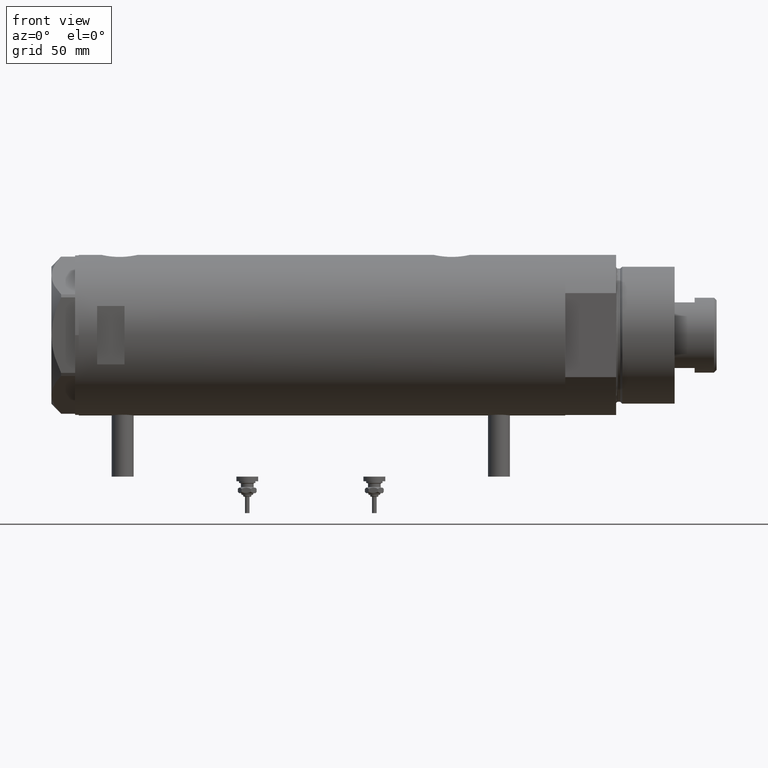
[diagram: clean part render]
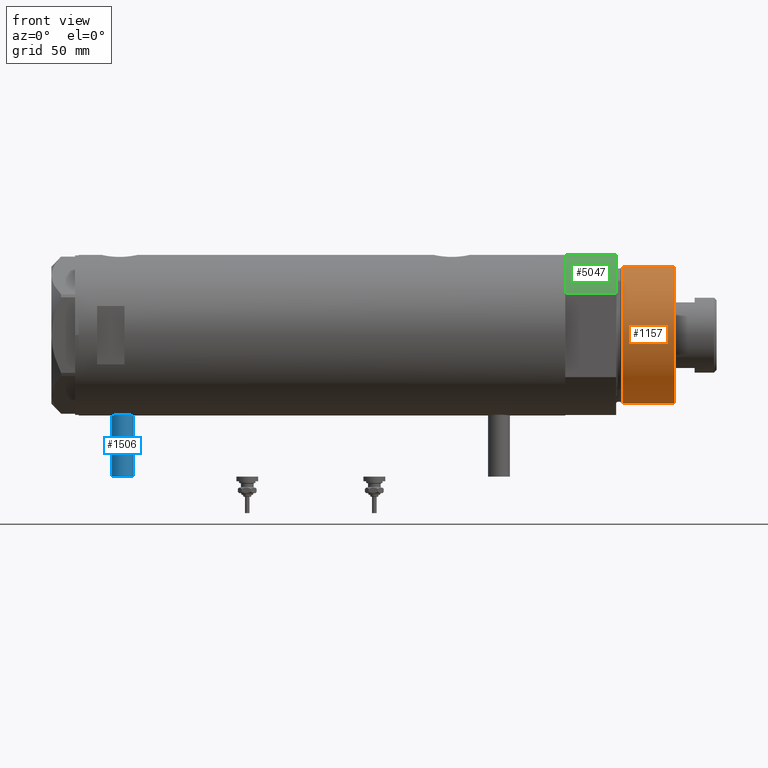
[diagram: same view with three faces highlighted in distinct colors, each labeled with its STEP entity id]
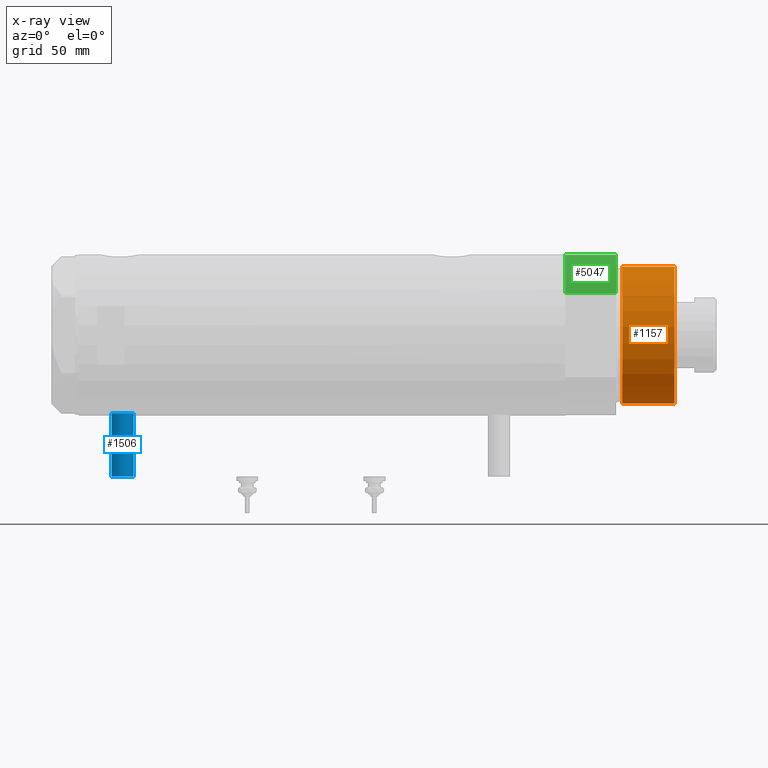
[diagram: x-ray of the same camera — body ghosted, the three highlighted faces saturated]
A machine part, front view with three faces highlighted in distinct colors.
The next image is the same camera in x-ray (body ghosted, the three faces saturated) — at least one of them is partly hidden behind the body in this view.
Their STEP definitions:

[orange] entity #1157 — the highlighted cylindrical surface (partial cylindrical patch) has radius 37.5 mm, axis along (-1, -0, 0).
#3 = CARTESIAN_POINT ( 'NONE',  ( 37.50000000000000711, 4.592425496802575156E-15, 59.89999999999999147 ) ) ;
#8 = CARTESIAN_POINT ( 'NONE',  ( -37.50000000000000711, 0.000000000000000000, 59.89999999999999147 ) ) ;
#376 = DIRECTION ( 'NONE',  ( -0.000000000000000000, -0.000000000000000000, -1.000000000000000000 ) ) ;
#468 = CIRCLE ( 'NONE', #2876, 37.50000000000000711 ) ;
#548 = CARTESIAN_POINT ( 'NONE',  ( -37.50000000000000711, 0.000000000000000000, 59.89999999999999147 ) ) ;
#582 = DIRECTION ( 'NONE',  ( -0.000000000000000000, -0.000000000000000000, -1.000000000000000000 ) ) ;
#827 = DIRECTION ( 'NONE',  ( 1.000000000000000000, 0.000000000000000000, 0.000000000000000000 ) ) ;
#871 = CARTESIAN_POINT ( 'NONE',  ( 37.50000000000000711, 4.592425496802575156E-15, 59.89999999999999147 ) ) ;
#1086 = ORIENTED_EDGE ( 'NONE', *, *, #1109, .T. ) ;
#1109 = EDGE_CURVE ( 'NONE', #2099, #2554, #5985, .T. ) ;
#1157 = ADVANCED_FACE ( 'NONE', ( #5787 ), #2551, .T. ) ;
#2099 = VERTEX_POINT ( 'NONE', #8 ) ;
#2147 = EDGE_LOOP ( 'NONE', ( #4466, #5566, #1086, #2421 ) ) ;
#2312 = VECTOR ( 'NONE', #376, 1000.000000000000000 ) ;
#2415 = DIRECTION ( 'NONE',  ( -0.000000000000000000, -0.000000000000000000, -1.000000000000000000 ) ) ;
#2421 = ORIENTED_EDGE ( 'NONE', *, *, #3498, .T. ) ;
#2464 = CARTESIAN_POINT ( 'NONE',  ( 0.000000000000000000, 0.000000000000000000, 59.89999999999999147 ) ) ;
#2551 = CYLINDRICAL_SURFACE ( 'NONE', #2856, 37.50000000000000711 ) ;
#2554 = VERTEX_POINT ( 'NONE', #4617 ) ;
#2704 = DIRECTION ( 'NONE',  ( -0.000000000000000000, -0.000000000000000000, 1.000000000000000000 ) ) ;
#2792 = AXIS2_PLACEMENT_3D ( 'NONE', #5553, #4146, #4541 ) ;
#2856 = AXIS2_PLACEMENT_3D ( 'NONE', #2464, #582, #5262 ) ;
#2876 = AXIS2_PLACEMENT_3D ( 'NONE', #3091, #2704, #827 ) ;
#3091 = CARTESIAN_POINT ( 'NONE',  ( 0.000000000000000000, 0.000000000000000000, 31.27384048104054415 ) ) ;
#3166 = CIRCLE ( 'NONE', #2792, 37.50000000000000711 ) ;
#3498 = EDGE_CURVE ( 'NONE', #2554, #5234, #468, .T. ) ;
#3631 = CARTESIAN_POINT ( 'NONE',  ( 37.50000000000000711, 4.592425496802575156E-15, 31.27384048104054415 ) ) ;
#3757 = VERTEX_POINT ( 'NONE', #3 ) ;
#3956 = EDGE_CURVE ( 'NONE', #3757, #5234, #5986, .T. ) ;
#4146 = DIRECTION ( 'NONE',  ( 0.000000000000000000, 0.000000000000000000, 1.000000000000000000 ) ) ;
#4466 = ORIENTED_EDGE ( 'NONE', *, *, #3956, .F. ) ;
#4541 = DIRECTION ( 'NONE',  ( 1.000000000000000000, 0.000000000000000000, 0.000000000000000000 ) ) ;
#4617 = CARTESIAN_POINT ( 'NONE',  ( -37.50000000000000711, 0.000000000000000000, 31.27384048104054415 ) ) ;
#5215 = EDGE_CURVE ( 'NONE', #2099, #3757, #3166, .T. ) ;
#5234 = VERTEX_POINT ( 'NONE', #3631 ) ;
#5262 = DIRECTION ( 'NONE',  ( -1.000000000000000000, 0.000000000000000000, 0.000000000000000000 ) ) ;
#5553 = CARTESIAN_POINT ( 'NONE',  ( 0.000000000000000000, 0.000000000000000000, 59.89999999999999147 ) ) ;
#5566 = ORIENTED_EDGE ( 'NONE', *, *, #5215, .F. ) ;
#5573 = VECTOR ( 'NONE', #2415, 1000.000000000000000 ) ;
#5787 = FACE_OUTER_BOUND ( 'NONE', #2147, .T. ) ;
#5985 = LINE ( 'NONE', #548, #5573 ) ;
#5986 = LINE ( 'NONE', #871, #2312 ) ;

[blue] entity #1506 — the highlighted cylindrical surface (edge-blend (fillet) strip) has radius 6 mm, axis along (0, 0, 1).
#22 = CARTESIAN_POINT ( 'NONE',  ( -77.50000000000000000, 0.000000000000000000, 103.2000000000000028 ) ) ;
#127 = ORIENTED_EDGE ( 'NONE', *, *, #5369, .F. ) ;
#454 = CARTESIAN_POINT ( 'NONE',  ( -77.50000000000000000, 0.000000000000000000, 109.1999999999999886 ) ) ;
#489 = CYLINDRICAL_SURFACE ( 'NONE', #1915, 5.999999999999991118 ) ;
#923 = CIRCLE ( 'NONE', #1117, 5.999999999999991118 ) ;
#936 = EDGE_CURVE ( 'NONE', #2360, #2653, #923, .T. ) ;
#985 = VERTEX_POINT ( 'NONE', #2242 ) ;
#1093 = CARTESIAN_POINT ( 'NONE',  ( -77.50000000000000000, 0.000000000000000000, 103.2000000000000028 ) ) ;
#1117 = AXIS2_PLACEMENT_3D ( 'NONE', #3568, #2738, #4901 ) ;
#1322 = CARTESIAN_POINT ( 'NONE',  ( -42.79999999999999716, 0.000000000000000000, 103.2000000000000028 ) ) ;
#1506 = ADVANCED_FACE ( 'NONE', ( #5054 ), #489, .T. ) ;
#1750 = ORIENTED_EDGE ( 'NONE', *, *, #936, .T. ) ;
#1915 = AXIS2_PLACEMENT_3D ( 'NONE', #454, #4226, #3652 ) ;
#2242 = CARTESIAN_POINT ( 'NONE',  ( -77.50000000000000000, 7.347880794884101001E-16, 115.1999999999999886 ) ) ;
#2258 = CARTESIAN_POINT ( 'NONE',  ( -42.79999999999999716, 7.347880794884101001E-16, 115.1999999999999886 ) ) ;
#2282 = EDGE_CURVE ( 'NONE', #985, #2653, #2766, .T. ) ;
#2286 = VERTEX_POINT ( 'NONE', #22 ) ;
#2360 = VERTEX_POINT ( 'NONE', #1322 ) ;
#2653 = VERTEX_POINT ( 'NONE', #2258 ) ;
#2730 = ORIENTED_EDGE ( 'NONE', *, *, #2282, .F. ) ;
#2738 = DIRECTION ( 'NONE',  ( -1.000000000000000000, 0.000000000000000000, 0.000000000000000000 ) ) ;
#2766 = LINE ( 'NONE', #3211, #3149 ) ;
#2788 = VECTOR ( 'NONE', #2938, 1000.000000000000000 ) ;
#2938 = DIRECTION ( 'NONE',  ( 1.000000000000000000, -0.000000000000000000, -0.000000000000000000 ) ) ;
#3149 = VECTOR ( 'NONE', #4168, 1000.000000000000000 ) ;
#3173 = EDGE_CURVE ( 'NONE', #2286, #2360, #5335, .T. ) ;
#3211 = CARTESIAN_POINT ( 'NONE',  ( -77.50000000000000000, 7.347880794884104945E-16, 115.1999999999999886 ) ) ;
#3568 = CARTESIAN_POINT ( 'NONE',  ( -42.79999999999999716, 0.000000000000000000, 109.1999999999999886 ) ) ;
#3641 = CIRCLE ( 'NONE', #4408, 5.999999999999991118 ) ;
#3652 = DIRECTION ( 'NONE',  ( 0.000000000000000000, 0.000000000000000000, -1.000000000000000000 ) ) ;
#3664 = ORIENTED_EDGE ( 'NONE', *, *, #3173, .T. ) ;
#3918 = CARTESIAN_POINT ( 'NONE',  ( -77.50000000000000000, 0.000000000000000000, 109.1999999999999886 ) ) ;
#3952 = DIRECTION ( 'NONE',  ( -1.000000000000000000, 0.000000000000000000, 0.000000000000000000 ) ) ;
#4168 = DIRECTION ( 'NONE',  ( 1.000000000000000000, -0.000000000000000000, -0.000000000000000000 ) ) ;
#4226 = DIRECTION ( 'NONE',  ( 1.000000000000000000, -0.000000000000000000, -0.000000000000000000 ) ) ;
#4408 = AXIS2_PLACEMENT_3D ( 'NONE', #3918, #3952, #4453 ) ;
#4453 = DIRECTION ( 'NONE',  ( 0.000000000000000000, 0.000000000000000000, 1.000000000000000000 ) ) ;
#4901 = DIRECTION ( 'NONE',  ( 0.000000000000000000, 0.000000000000000000, 1.000000000000000000 ) ) ;
#5054 = FACE_OUTER_BOUND ( 'NONE', #5150, .T. ) ;
#5150 = EDGE_LOOP ( 'NONE', ( #2730, #127, #3664, #1750 ) ) ;
#5335 = LINE ( 'NONE', #1093, #2788 ) ;
#5369 = EDGE_CURVE ( 'NONE', #2286, #985, #3641, .T. ) ;

[green] entity #5047 — the highlighted cylindrical surface (partial cylindrical patch) has radius 44 mm, axis along (-1, -0, 0).
#12 = EDGE_CURVE ( 'NONE', #1790, #4515, #4570, .T. ) ;
#177 = AXIS2_PLACEMENT_3D ( 'NONE', #1571, #3390, #5244 ) ;
#294 = ORIENTED_EDGE ( 'NONE', *, *, #3489, .T. ) ;
#588 = CARTESIAN_POINT ( 'NONE',  ( -44.00000000000000000, 0.000000000000000000, 27.89999999999999858 ) ) ;
#1000 = EDGE_CURVE ( 'NONE', #3912, #1790, #1792, .T. ) ;
#1445 = DIRECTION ( 'NONE',  ( 0.000000000000000000, 0.000000000000000000, 1.000000000000000000 ) ) ;
#1571 = CARTESIAN_POINT ( 'NONE',  ( 0.000000000000000000, 0.000000000000000000, 27.89999999999999858 ) ) ;
#1790 = VERTEX_POINT ( 'NONE', #5574 ) ;
#1792 = LINE ( 'NONE', #5459, #3906 ) ;
#1939 = VECTOR ( 'NONE', #3117, 1000.000000000000000 ) ;
#1988 = AXIS2_PLACEMENT_3D ( 'NONE', #4166, #1445, #2382 ) ;
#2234 = CIRCLE ( 'NONE', #3642, 44.00000000000000000 ) ;
#2267 = DIRECTION ( 'NONE',  ( -0.000000000000000000, -0.000000000000000000, -1.000000000000000000 ) ) ;
#2382 = DIRECTION ( 'NONE',  ( 1.000000000000000000, 0.000000000000000000, 0.000000000000000000 ) ) ;
#2612 = CARTESIAN_POINT ( 'NONE',  ( -23.01629857296780557, -37.50000000000000000, 0.000000000000000000 ) ) ;
#2774 = DIRECTION ( 'NONE',  ( 0.000000000000000000, 0.000000000000000000, 1.000000000000000000 ) ) ;
#3117 = DIRECTION ( 'NONE',  ( -0.000000000000000000, -0.000000000000000000, 1.000000000000000000 ) ) ;
#3192 = CARTESIAN_POINT ( 'NONE',  ( 0.000000000000000000, 0.000000000000000000, 27.89999999999999858 ) ) ;
#3363 = FACE_OUTER_BOUND ( 'NONE', #5408, .T. ) ;
#3390 = DIRECTION ( 'NONE',  ( -0.000000000000000000, -0.000000000000000000, -1.000000000000000000 ) ) ;
#3489 = EDGE_CURVE ( 'NONE', #4515, #3884, #4459, .T. ) ;
#3642 = AXIS2_PLACEMENT_3D ( 'NONE', #3192, #2774, #4567 ) ;
#3797 = EDGE_CURVE ( 'NONE', #3912, #3884, #2234, .T. ) ;
#3849 = CYLINDRICAL_SURFACE ( 'NONE', #177, 44.00000000000000000 ) ;
#3884 = VERTEX_POINT ( 'NONE', #5645 ) ;
#3906 = VECTOR ( 'NONE', #2267, 1000.000000000000000 ) ;
#3912 = VERTEX_POINT ( 'NONE', #588 ) ;
#4107 = ORIENTED_EDGE ( 'NONE', *, *, #12, .T. ) ;
#4166 = CARTESIAN_POINT ( 'NONE',  ( 0.000000000000000000, 0.000000000000000000, 0.000000000000000000 ) ) ;
#4459 = LINE ( 'NONE', #2612, #1939 ) ;
#4515 = VERTEX_POINT ( 'NONE', #4738 ) ;
#4567 = DIRECTION ( 'NONE',  ( 1.000000000000000000, 0.000000000000000000, 0.000000000000000000 ) ) ;
#4570 = CIRCLE ( 'NONE', #1988, 44.00000000000000000 ) ;
#4738 = CARTESIAN_POINT ( 'NONE',  ( -23.01629857296780557, -37.50000000000000000, 0.000000000000000000 ) ) ;
#4759 = ORIENTED_EDGE ( 'NONE', *, *, #1000, .T. ) ;
#5047 = ADVANCED_FACE ( 'NONE', ( #3363 ), #3849, .T. ) ;
#5098 = ORIENTED_EDGE ( 'NONE', *, *, #3797, .F. ) ;
#5244 = DIRECTION ( 'NONE',  ( -1.000000000000000000, 0.000000000000000000, 0.000000000000000000 ) ) ;
#5408 = EDGE_LOOP ( 'NONE', ( #5098, #4759, #4107, #294 ) ) ;
#5459 = CARTESIAN_POINT ( 'NONE',  ( -44.00000000000000000, 0.000000000000000000, 27.89999999999999858 ) ) ;
#5574 = CARTESIAN_POINT ( 'NONE',  ( -44.00000000000000000, 0.000000000000000000, 0.000000000000000000 ) ) ;
#5645 = CARTESIAN_POINT ( 'NONE',  ( -23.01629857296780557, -37.50000000000000000, 27.89999999999999858 ) ) ;